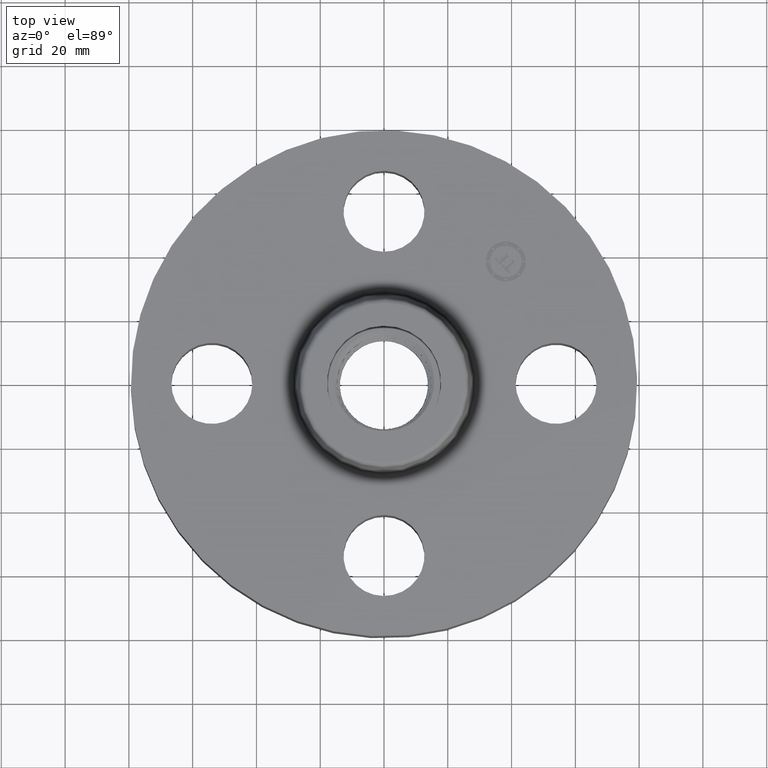
[diagram: clean part render]
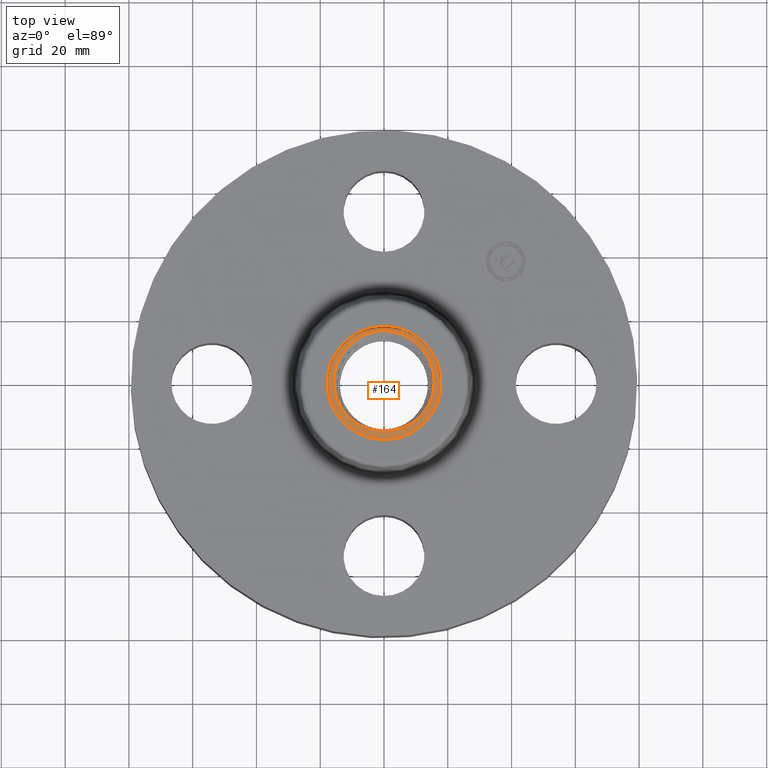
[diagram: same view with one face highlighted and labeled with its STEP entity id]
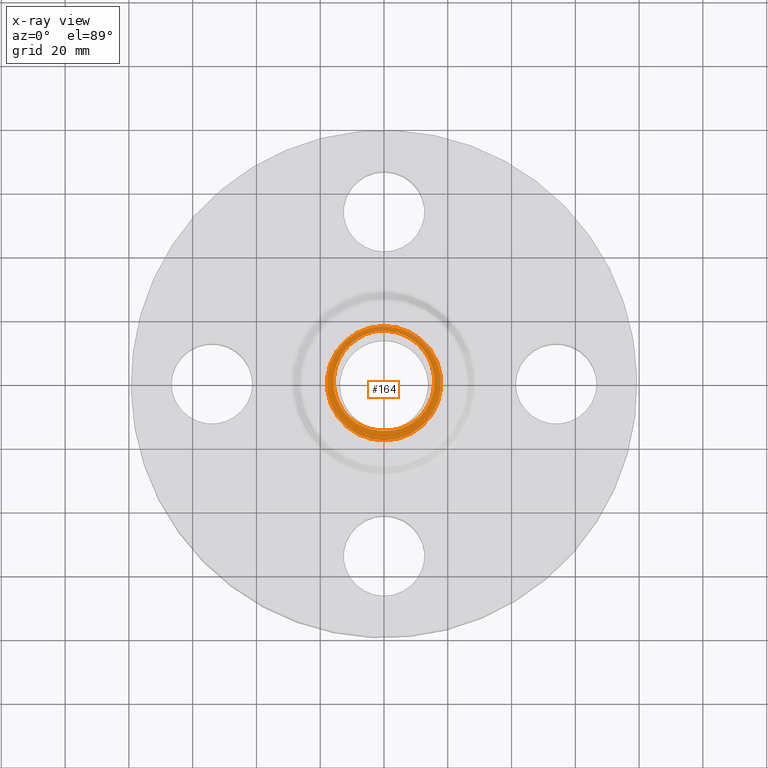
[diagram: x-ray of the same camera — body ghosted, the highlighted face saturated]
A machine part, top view. The second image highlights one B-rep face of the part: STEP entity #164.
The next image is the same camera in x-ray: the body ghosted, the highlighted face saturated — about 0% of this face is hidden behind the body in this view.
In plain terms, the highlighted planar face has unit normal (0, 0, -1).
Its self-contained STEP definition (entity closure, byte-faithful):
#38=AXIS2_PLACEMENT_3D('Plane Axis2P3D',#35,#36,#37) ;
#42=AXIS2_PLACEMENT_3D('Circle Axis2P3D',#40,#41,$) ;
#51=AXIS2_PLACEMENT_3D('Circle Axis2P3D',#49,#50,$) ;
#60=AXIS2_PLACEMENT_3D('Circle Axis2P3D',#58,#59,$) ;
#35=CARTESIAN_POINT('Axis2P3D Location',(-9.35384753031E-017,1.08399728389E-016,1.38000000001)) ;
#40=CARTESIAN_POINT('Axis2P3D Location',(0.,0.,1.38000000001)) ;
#44=CARTESIAN_POINT('Vertex',(-0.337995004717,0.618695706135,1.38000000001)) ;
#46=CARTESIAN_POINT('Vertex',(0.337995004717,-0.618695706135,1.38000000001)) ;
#49=CARTESIAN_POINT('Axis2P3D Location',(0.,0.,1.38000000001)) ;
#58=CARTESIAN_POINT('Axis2P3D Location',(4.63321419725E-017,3.49676543189E-018,1.38000000001)) ;
#62=CARTESIAN_POINT('Vertex',(-0.0094992929592,-0.585706503768,1.37999941783)) ;
#64=CARTESIAN_POINT('Vertex',(-0.0793239500675,-0.580387882926,1.38000047156)) ;
#68=CARTESIAN_POINT('Control Point',(-0.309049877259,0.565716223418,1.38000000001)) ;
#69=CARTESIAN_POINT('Control Point',(-0.362777896468,0.533771563976,1.38000000001)) ;
#70=CARTESIAN_POINT('Control Point',(-0.412515231565,0.495379412459,1.38000000001)) ;
#71=CARTESIAN_POINT('Control Point',(-0.457206729445,0.451190931835,1.38000000001)) ;
#72=CARTESIAN_POINT('Control Point',(-0.534746563447,0.353031707729,1.38000000001)) ;
#73=CARTESIAN_POINT('Control Point',(-0.586093060594,0.239601827183,1.38000000001)) ;
#74=CARTESIAN_POINT('Control Point',(-0.604602579804,0.180115727712,1.38000000001)) ;
#75=CARTESIAN_POINT('Control Point',(-0.622895640326,0.0784362945675,1.38000000001)) ;
#76=CARTESIAN_POINT('Control Point',(-0.620137181279,-0.0240329080549,1.38000000001)) ;
#77=CARTESIAN_POINT('Control Point',(-0.615651669387,-0.0647732968025,1.38000000001)) ;
#78=CARTESIAN_POINT('Control Point',(-0.596098259284,-0.165083791592,1.38000000001)) ;
#79=CARTESIAN_POINT('Control Point',(-0.556380005279,-0.259276881455,1.38000000001)) ;
#80=CARTESIAN_POINT('Control Point',(-0.525657519801,-0.312373715765,1.38000000001)) ;
#81=CARTESIAN_POINT('Control Point',(-0.451775581811,-0.409537056614,1.38000000001)) ;
#82=CARTESIAN_POINT('Control Point',(-0.356680838324,-0.485039793767,1.38000000001)) ;
#83=CARTESIAN_POINT('Control Point',(-0.304708220392,-0.516507714598,1.38000000001)) ;
#84=CARTESIAN_POINT('Control Point',(-0.228145362326,-0.550475872948,1.38000000001)) ;
#85=CARTESIAN_POINT('Control Point',(-0.147669992557,-0.570416931144,1.38000000001)) ;
#86=CARTESIAN_POINT('Control Point',(-0.125022591465,-0.574863108417,1.38000000001)) ;
#87=CARTESIAN_POINT('Control Point',(-0.102215798942,-0.578188364813,1.38000000001)) ;
#88=CARTESIAN_POINT('Control Point',(-0.0793238352369,-0.580387166803,1.38000000001)) ;
#89=CARTESIAN_POINT('Vertex',(-0.309049877259,0.565716223418,1.38000000001)) ;
#93=CARTESIAN_POINT('Control Point',(-0.0516222161934,0.652478007956,1.38000000001)) ;
#94=CARTESIAN_POINT('Control Point',(-0.106194807364,0.646184010019,1.38000000001)) ;
#95=CARTESIAN_POINT('Control Point',(-0.160009312739,0.634171456827,1.38000000001)) ;
#96=CARTESIAN_POINT('Control Point',(-0.212273115157,0.616543812418,1.38000000001)) ;
#97=CARTESIAN_POINT('Control Point',(-0.262179981359,0.593583300349,1.38000000001)) ;
#98=CARTESIAN_POINT('Control Point',(-0.309049877259,0.565716223418,1.38000000001)) ;
#99=CARTESIAN_POINT('Vertex',(-0.0516222161934,0.652478007956,1.38000000001)) ;
#103=CARTESIAN_POINT('Control Point',(-0.0516222161934,0.652478007956,1.38000000001)) ;
#104=CARTESIAN_POINT('Control Point',(-0.0413007950848,0.652958584038,1.38000000001)) ;
#105=CARTESIAN_POINT('Control Point',(-0.0309730042557,0.653235209103,1.38000000001)) ;
#106=CARTESIAN_POINT('Control Point',(-0.0206371374691,0.653307693076,1.38000000001)) ;
#107=CARTESIAN_POINT('Control Point',(-0.0103127120084,0.653175973511,1.38000000001)) ;
#108=CARTESIAN_POINT('Control Point',(2.00063868155E-006,0.652840425221,1.38000000001)) ;
#109=CARTESIAN_POINT('Vertex',(2.00063868156E-006,0.652840425221,1.38000000001)) ;
#113=CARTESIAN_POINT('Control Point',(2.00063868259E-006,0.652840425221,1.38000000001)) ;
#114=CARTESIAN_POINT('Control Point',(0.0628711863807,0.650795225159,1.38000000001)) ;
#115=CARTESIAN_POINT('Control Point',(0.125379629311,0.641177787967,1.38000000001)) ;
#116=CARTESIAN_POINT('Control Point',(0.186297825337,0.624043040184,1.38000000001)) ;
#117=CARTESIAN_POINT('Control Point',(0.302533912874,0.575468736384,1.38000000001)) ;
#118=CARTESIAN_POINT('Control Point',(0.403364497385,0.500774178152,1.38000000001)) ;
#119=CARTESIAN_POINT('Control Point',(0.448878895619,0.457513184528,1.38000000001)) ;
#120=CARTESIAN_POINT('Control Point',(0.515027563565,0.377053425308,1.38000000001)) ;
#121=CARTESIAN_POINT('Control Point',(0.563227771731,0.285550788472,1.38000000001)) ;
#122=CARTESIAN_POINT('Control Point',(0.579438395801,0.247507273438,1.38000000001)) ;
#123=CARTESIAN_POINT('Control Point',(0.611941364628,0.149647860155,1.38000000001)) ;
#124=CARTESIAN_POINT('Control Point',(0.623891988356,0.0471352797023,1.38000000001)) ;
#125=CARTESIAN_POINT('Control Point',(0.623382624074,-0.0148105217768,1.38000000001)) ;
#126=CARTESIAN_POINT('Control Point',(0.607085022295,-0.137016093215,1.38000000001)) ;
#127=CARTESIAN_POINT('Control Point',(0.561591638179,-0.251022338301,1.38000000001)) ;
#128=CARTESIAN_POINT('Control Point',(0.531877897988,-0.304783079433,1.38000000001)) ;
#129=CARTESIAN_POINT('Control Point',(0.470656047891,-0.388681376925,1.38000000001)) ;
#130=CARTESIAN_POINT('Control Point',(0.393727720953,-0.457316226562,1.38000000001)) ;
#131=CARTESIAN_POINT('Control Point',(0.359716602556,-0.482661361841,1.38000000001)) ;
#132=CARTESIAN_POINT('Control Point',(0.323705010201,-0.504851167891,1.38000000001)) ;
#133=CARTESIAN_POINT('Control Point',(0.286091728501,-0.523694317702,1.38000000001)) ;
#134=CARTESIAN_POINT('Vertex',(0.286091728501,-0.523694317702,1.38000000001)) ;
#138=CARTESIAN_POINT('Control Point',(0.286091728501,-0.523694317702,1.38000000001)) ;
#139=CARTESIAN_POINT('Control Point',(0.232940811283,-0.550321367122,1.38000000001)) ;
#140=CARTESIAN_POINT('Control Point',(0.176591457258,-0.570265759,1.38000000001)) ;
#141=CARTESIAN_POINT('Control Point',(0.118131865301,-0.582998762756,1.38000000001)) ;
#142=CARTESIAN_POINT('Control Point',(0.0588607874329,-0.588259967416,1.38000000001)) ;
#143=CARTESIAN_POINT('Control Point',(-3.89247784707E-006,-0.586126893668,1.38000000001)) ;
#144=CARTESIAN_POINT('Vertex',(-3.89247784706E-006,-0.586126893668,1.38000000001)) ;
#148=CARTESIAN_POINT('Control Point',(-3.89247784786E-006,-0.586126893668,1.38000000001)) ;
#149=CARTESIAN_POINT('Control Point',(-0.00190389403035,-0.586058043496,1.38000000001)) ;
#150=CARTESIAN_POINT('Control Point',(-0.00380347209314,-0.585981489595,1.38000000001)) ;
#151=CARTESIAN_POINT('Control Point',(-0.00570263367803,-0.585897232118,1.38000000001)) ;
#152=CARTESIAN_POINT('Control Point',(-0.00760123787277,-0.585805278216,1.38000000001)) ;
#153=CARTESIAN_POINT('Control Point',(-0.00949929179106,-0.585705628895,1.38000000001)) ;
#36=DIRECTION('Axis2P3D Direction',(0.,0.,-0.0393700787402)) ;
#37=DIRECTION('Axis2P3D XDirection',(0.,0.0393700787402,0.)) ;
#41=DIRECTION('Axis2P3D Direction',(0.,0.,-0.0393700787402)) ;
#50=DIRECTION('Axis2P3D Direction',(0.,0.,-0.0393700787402)) ;
#59=DIRECTION('Axis2P3D Direction',(0.,0.,-0.0393700787402)) ;
#55=ORIENTED_EDGE('',*,*,#48,.T.) ;
#56=ORIENTED_EDGE('',*,*,#53,.T.) ;
#156=ORIENTED_EDGE('',*,*,#66,.T.) ;
#157=ORIENTED_EDGE('',*,*,#91,.F.) ;
#158=ORIENTED_EDGE('',*,*,#101,.F.) ;
#159=ORIENTED_EDGE('',*,*,#111,.T.) ;
#160=ORIENTED_EDGE('',*,*,#136,.T.) ;
#161=ORIENTED_EDGE('',*,*,#146,.T.) ;
#162=ORIENTED_EDGE('',*,*,#154,.T.) ;
#163=FACE_BOUND('',#155,.T.) ;
#164=ADVANCED_FACE('PartBody',(#57,#163),#39,.F.) ;
#67=B_SPLINE_CURVE_WITH_KNOTS('',5,(#68,#69,#70,#71,#72,#73,#74,#75,#76,#77,#78,#79,#80,#81,#82,#83,#84,#85,#86,#87,#88),.UNSPECIFIED.,.F.,.U.,(6,3,3,3,3,3,6),(0.,11.0233154092,22.0516941895,29.4025239543,40.4294360053,51.4657590922,55.7264244859),.UNSPECIFIED.) ;
#92=B_SPLINE_CURVE_WITH_KNOTS('',5,(#93,#94,#95,#96,#97,#98),.UNSPECIFIED.,.F.,.U.,(6,6),(0.,9.61624217029),.UNSPECIFIED.) ;
#102=B_SPLINE_CURVE_WITH_KNOTS('',5,(#103,#104,#105,#106,#107,#108),.UNSPECIFIED.,.F.,.U.,(6,6),(0.,1.80866572115),.UNSPECIFIED.) ;
#112=B_SPLINE_CURVE_WITH_KNOTS('',5,(#113,#114,#115,#116,#117,#118,#119,#120,#121,#122,#123,#124,#125,#126,#127,#128,#129,#130,#131,#132,#133),.UNSPECIFIED.,.F.,.U.,(6,3,3,3,3,3,6),(0.,11.0239950529,22.0484212353,29.3938558374,40.4078664935,51.4249853844,59.1269714879),.UNSPECIFIED.) ;
#137=B_SPLINE_CURVE_WITH_KNOTS('',5,(#138,#139,#140,#141,#142,#143),.UNSPECIFIED.,.F.,.U.,(6,6),(0.,10.8835924053),.UNSPECIFIED.) ;
#147=B_SPLINE_CURVE_WITH_KNOTS('',5,(#148,#149,#150,#151,#152,#153),.UNSPECIFIED.,.F.,.U.,(6,6),(0.,0.351294570816),.UNSPECIFIED.) ;
#43=CIRCLE('generated circle',#42,0.705000000003) ;
#52=CIRCLE('generated circle',#51,0.705000000003) ;
#61=CIRCLE('generated circle',#60,0.585783549135) ;
#48=EDGE_CURVE('',#45,#47,#43,.F.) ;
#53=EDGE_CURVE('',#47,#45,#52,.F.) ;
#66=EDGE_CURVE('',#63,#65,#61,.T.) ;
#91=EDGE_CURVE('',#90,#65,#67,.T.) ;
#101=EDGE_CURVE('',#100,#90,#92,.T.) ;
#111=EDGE_CURVE('',#100,#110,#102,.T.) ;
#136=EDGE_CURVE('',#110,#135,#112,.T.) ;
#146=EDGE_CURVE('',#135,#145,#137,.T.) ;
#154=EDGE_CURVE('',#145,#63,#147,.T.) ;
#54=EDGE_LOOP('',(#55,#56)) ;
#155=EDGE_LOOP('',(#156,#157,#158,#159,#160,#161,#162)) ;
#57=FACE_OUTER_BOUND('',#54,.T.) ;
#39=PLANE('',#38) ;
#45=VERTEX_POINT('',#44) ;
#47=VERTEX_POINT('',#46) ;
#63=VERTEX_POINT('',#62) ;
#65=VERTEX_POINT('',#64) ;
#90=VERTEX_POINT('',#89) ;
#100=VERTEX_POINT('',#99) ;
#110=VERTEX_POINT('',#109) ;
#135=VERTEX_POINT('',#134) ;
#145=VERTEX_POINT('',#144) ;